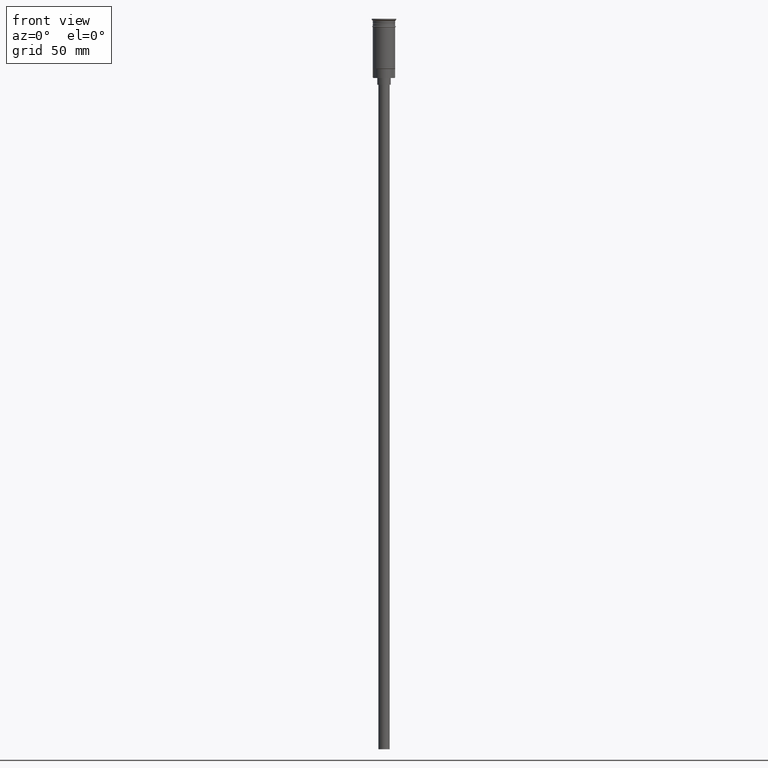
[diagram: clean part render]
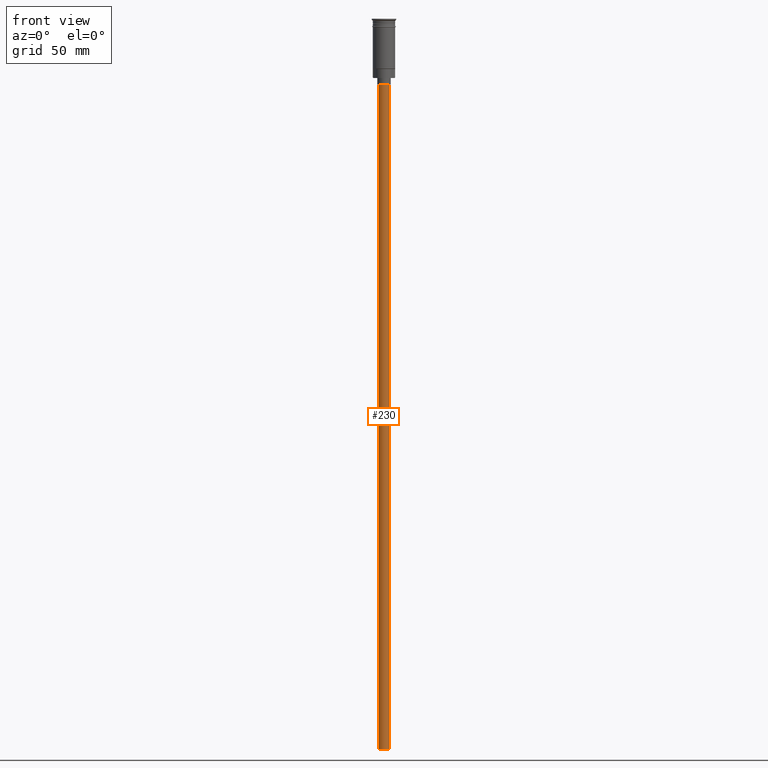
[diagram: same view with one face highlighted and labeled with its STEP entity id]
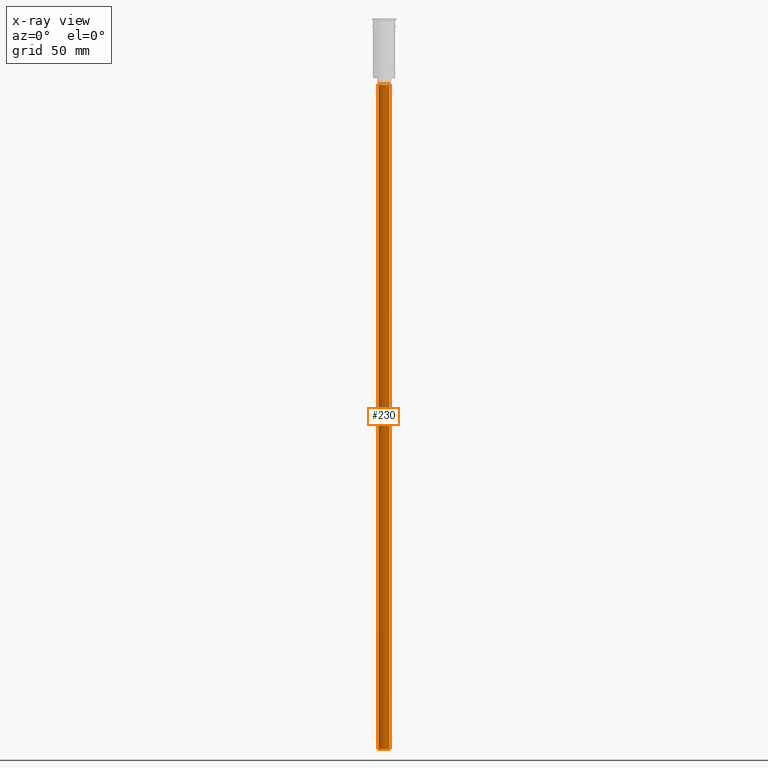
[diagram: x-ray of the same camera — body ghosted, the highlighted face saturated]
A machine part, front view. The second image highlights one B-rep face of the part: STEP entity #230.
The next image is the same camera in x-ray: the body ghosted, the highlighted face saturated — about 0% of this face is hidden behind the body in this view.
In plain terms, the highlighted cylindrical surface (edge-blend (fillet) strip) has radius 2.5 mm, axis along (-0, -0, 1).
Its self-contained STEP definition (entity closure, byte-faithful):
#118 = CARTESIAN_POINT ( 'NONE',  ( 2.500000000000000000, 0.000000000000000000, -326.5000000000000000 ) ) ;
#210 = CARTESIAN_POINT ( 'NONE',  ( 0.000000000000000000, 0.000000000000000000, -326.5000000000000000 ) ) ;
#230 = ADVANCED_FACE ( 'NONE', ( #300 ), #1304, .T. ) ;
#254 = ORIENTED_EDGE ( 'NONE', *, *, #754, .T. ) ;
#300 = FACE_OUTER_BOUND ( 'NONE', #575, .T. ) ;
#309 = CARTESIAN_POINT ( 'NONE',  ( 0.000000000000000000, 0.000000000000000000, -29.50000000000000000 ) ) ;
#337 = VERTEX_POINT ( 'NONE', #1290 ) ;
#371 = CIRCLE ( 'NONE', #737, 2.500000000000000000 ) ;
#429 = DIRECTION ( 'NONE',  ( -1.000000000000000000, 0.000000000000000000, 0.000000000000000000 ) ) ;
#445 = CARTESIAN_POINT ( 'NONE',  ( -2.500000000000000000, 3.061616997868383141E-16, -326.5000000000000000 ) ) ;
#448 = VERTEX_POINT ( 'NONE', #458 ) ;
#454 = VECTOR ( 'NONE', #488, 1000.000000000000000 ) ;
#458 = CARTESIAN_POINT ( 'NONE',  ( 2.500000000000000000, 0.000000000000000000, -326.5000000000000000 ) ) ;
#488 = DIRECTION ( 'NONE',  ( -0.000000000000000000, -0.000000000000000000, 1.000000000000000000 ) ) ;
#501 = AXIS2_PLACEMENT_3D ( 'NONE', #210, #1092, #429 ) ;
#575 = EDGE_LOOP ( 'NONE', ( #630, #1137, #254, #1567 ) ) ;
#630 = ORIENTED_EDGE ( 'NONE', *, *, #1517, .F. ) ;
#660 = CARTESIAN_POINT ( 'NONE',  ( -2.500000000000000000, 3.061616997868383141E-16, -326.5000000000000000 ) ) ;
#737 = AXIS2_PLACEMENT_3D ( 'NONE', #309, #1399, #1281 ) ;
#754 = EDGE_CURVE ( 'NONE', #448, #337, #1245, .T. ) ;
#913 = CIRCLE ( 'NONE', #501, 2.500000000000000000 ) ;
#914 = AXIS2_PLACEMENT_3D ( 'NONE', #923, #1098, #973 ) ;
#923 = CARTESIAN_POINT ( 'NONE',  ( 0.000000000000000000, 0.000000000000000000, -326.5000000000000000 ) ) ;
#971 = DIRECTION ( 'NONE',  ( -0.000000000000000000, -0.000000000000000000, 1.000000000000000000 ) ) ;
#972 = LINE ( 'NONE', #660, #1210 ) ;
#973 = DIRECTION ( 'NONE',  ( 1.000000000000000000, 0.000000000000000000, 0.000000000000000000 ) ) ;
#1092 = DIRECTION ( 'NONE',  ( 0.000000000000000000, 0.000000000000000000, -1.000000000000000000 ) ) ;
#1098 = DIRECTION ( 'NONE',  ( -0.000000000000000000, -0.000000000000000000, 1.000000000000000000 ) ) ;
#1137 = ORIENTED_EDGE ( 'NONE', *, *, #1523, .F. ) ;
#1169 = EDGE_CURVE ( 'NONE', #337, #1270, #371, .T. ) ;
#1210 = VECTOR ( 'NONE', #971, 1000.000000000000000 ) ;
#1245 = LINE ( 'NONE', #118, #454 ) ;
#1270 = VERTEX_POINT ( 'NONE', #1406 ) ;
#1281 = DIRECTION ( 'NONE',  ( -1.000000000000000000, 0.000000000000000000, 0.000000000000000000 ) ) ;
#1290 = CARTESIAN_POINT ( 'NONE',  ( 2.500000000000000000, 0.000000000000000000, -29.50000000000000000 ) ) ;
#1294 = VERTEX_POINT ( 'NONE', #445 ) ;
#1304 = CYLINDRICAL_SURFACE ( 'NONE', #914, 2.500000000000000000 ) ;
#1399 = DIRECTION ( 'NONE',  ( 0.000000000000000000, 0.000000000000000000, -1.000000000000000000 ) ) ;
#1406 = CARTESIAN_POINT ( 'NONE',  ( -2.500000000000000000, 3.061616997868383141E-16, -29.50000000000000000 ) ) ;
#1517 = EDGE_CURVE ( 'NONE', #1294, #1270, #972, .T. ) ;
#1523 = EDGE_CURVE ( 'NONE', #448, #1294, #913, .T. ) ;
#1567 = ORIENTED_EDGE ( 'NONE', *, *, #1169, .T. ) ;